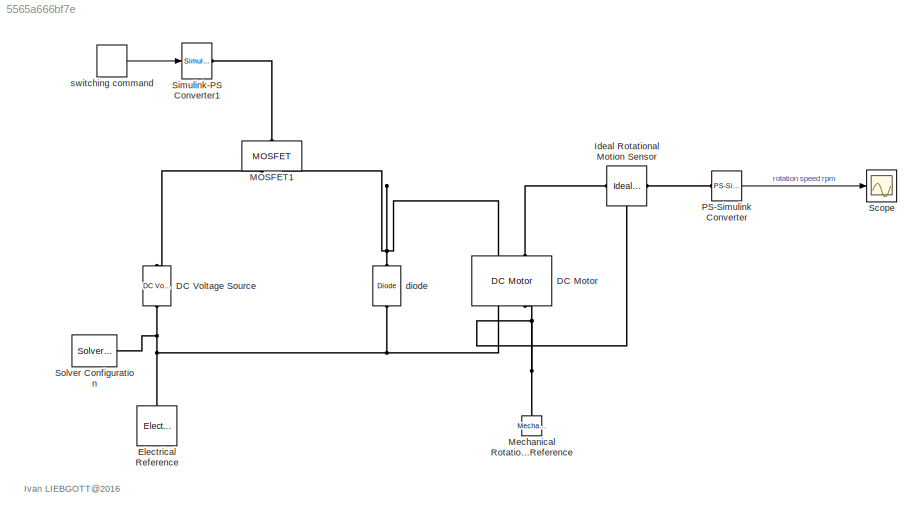
MODEL slx_5565a666bf7e
KIND model
CONFIG AbsTol = auto
CONFIG FixedStep = auto
CONFIG MaxStep = auto
CONFIG MinStep = auto
CONFIG RelTol = 1e-3
CONFIG SampleTimeConstraint = Unconstrained
CONFIG Solver = ode15s
CONFIG SolverMode = Auto
CONFIG SolverName = ode15s
CONFIG StartTime = 0.0
CONFIG StopTime = 0.05
BLOCK [Reference] DC Motor  REF=elec_lib/Actuators & Drivers/Rotational Actuators/DC Motor
  Ports = [0, 0, 0, 0, 0, 2, 2]
  SourceBlock = elec_lib/Actuators & Drivers/Rotational Actuators/DC Motor
  SourceType = DC Motor
BLOCK [Reference] DC Voltage Source  REF=fl_lib/Electrical/Electrical Sources/DC Voltage Source
  Ports = [0, 0, 0, 0, 0, 1, 1]
  SourceBlock = fl_lib/Electrical/Electrical Sources/DC Voltage Source
  SourceType = DC Voltage Source
BLOCK [Reference] Electrical Reference  REF=fl_lib/Electrical/Electrical Elements/Electrical Reference
  Ports = [0, 0, 0, 0, 0, 1]
  SourceBlock = fl_lib/Electrical/Electrical Elements/Electrical Reference
  SourceType = Electrical Reference
BLOCK [Reference] Ideal Rotational Motion Sensor  REF=fl_lib/Mechanical/Mechanical Sensors/Ideal Rotational
Motion Sensor
  Ports = [0, 0, 0, 0, 0, 1, 3]
  SourceBlock = fl_lib/Mechanical/Mechanical Sensors/Ideal Rotational\nMotion Sensor
  SourceType = Ideal Rotational\nMotion Sensor
BLOCK [Reference] MOSFET1  REF=pe_lib/Semiconductors/Fundamental
Components/MOSFET
  Ports = [0, 0, 0, 0, 0, 1, 2]
  SourceBlock = pe_lib/Semiconductors/Fundamental\nComponents/MOSFET
  SourceType = MOSFET
BLOCK [Reference] Mechanical Rotational Reference  REF=fl_lib/Mechanical/Rotational Elements/Mechanical
Rotational Reference
  Ports = [0, 0, 0, 0, 0, 1]
  SourceBlock = fl_lib/Mechanical/Rotational Elements/Mechanical\nRotational Reference
  SourceType = Mechanical\nRotational Reference
BLOCK [Reference] PS-Simulink Converter  REF=nesl_utility/PS-Simulink
Converter
  Ports = [0, 1, 0, 0, 0, 1]
  SourceBlock = nesl_utility/PS-Simulink\nConverter
  SourceType = PS-Simulink\nConverter
BLOCK [Scope] Scope
  Ports = [1]
  ScopeSpecificationString = Simulink.scopes.TimeScopeBlockCfg('CurrentConfiguration', extmgr.ConfigurationSet(extmgr.Configuration('Core','General UI',true,'FigureColor',[0.501960784313725 0.501960784313725 0.501960784313725]),extmgr.Configuration('Core','Source UI',true),extmgr.Configuration('Sources','WiredSimulink',true,'DataLoggingSaveFormat','StructureWithTime','DataLoggingDecimation','1','DataLoggingDecimateData',true)...<+2812ch>
BLOCK [Reference] Simulink-PS Converter1  REF=nesl_utility/Simulink-PS
Converter
  Ports = [1, 0, 0, 0, 0, 0, 1]
  SourceBlock = nesl_utility/Simulink-PS\nConverter
  SourceType = Simulink-PS\nConverter
BLOCK [Reference] Solver Configuration  REF=nesl_utility/Solver
Configuration
  Ports = [0, 0, 0, 0, 0, 0, 1]
  SourceBlock = nesl_utility/Solver\nConfiguration
  SourceType = Solver\nConfiguration
BLOCK [Reference] diode  REF=fl_lib/Electrical/Electrical Elements/Diode
  Ports = [0, 0, 0, 0, 0, 1, 1]
  SourceBlock = fl_lib/Electrical/Electrical Elements/Diode
  SourceType = Diode
BLOCK [DiscretePulseGenerator] switching command
  Period = 1e-3
  Ports = [0, 1]
  PulseType = Time based
  PulseWidth = 50
ANNOTATION (root): Ivan LIEBGOTT@2016
LINE PS-Simulink Converter:1 -> Scope:1
LINE switching command:1 -> Simulink-PS Converter1:1
PNET net1: DC Motor:LConn1 -- MOSFET1:RConn2 -- diode:RConn1
PLINE DC Motor:LConn2 -- Ideal Rotational Motion Sensor:LConn1
PNET net2: DC Motor:RConn1 -- DC Voltage Source:RConn1 -- Electrical Reference:LConn1 -- Solver Configuration:RConn1 -- diode:LConn1
PNET net3: DC Motor:RConn2 -- Ideal Rotational Motion Sensor:RConn1 -- Mechanical Rotational Reference:LConn1
PLINE DC Voltage Source:LConn1 -- MOSFET1:RConn1
PLINE Ideal Rotational Motion Sensor:RConn2 -- PS-Simulink Converter:LConn1
PLINE MOSFET1:LConn1 -- Simulink-PS Converter1:RConn1
note: PNET lines group multi-terminal physical nets as a canonical sorted terminal list (undirected conserving connections); 2-terminal nets keep the pairwise PLINE form
